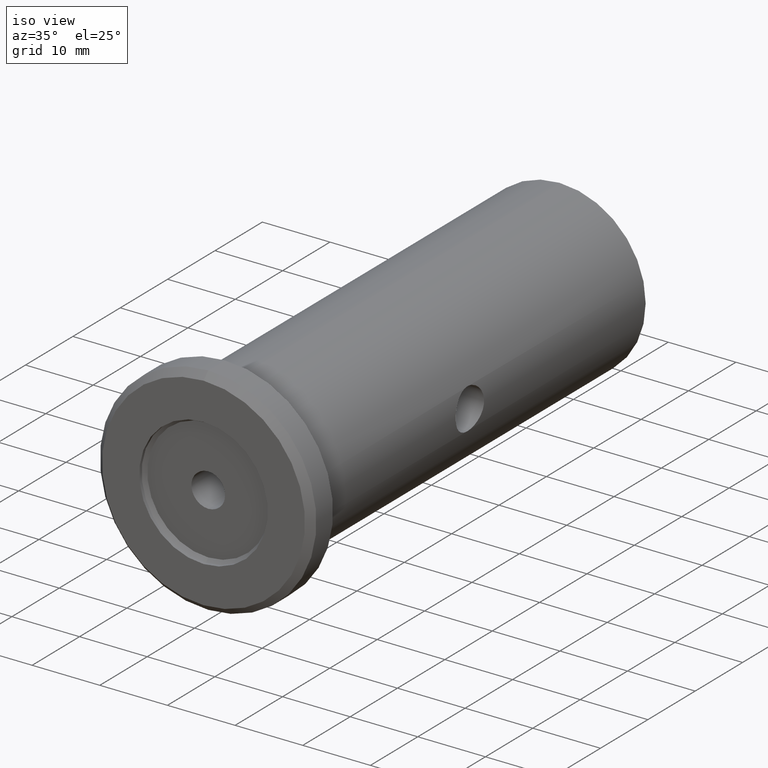
[diagram: clean part render]
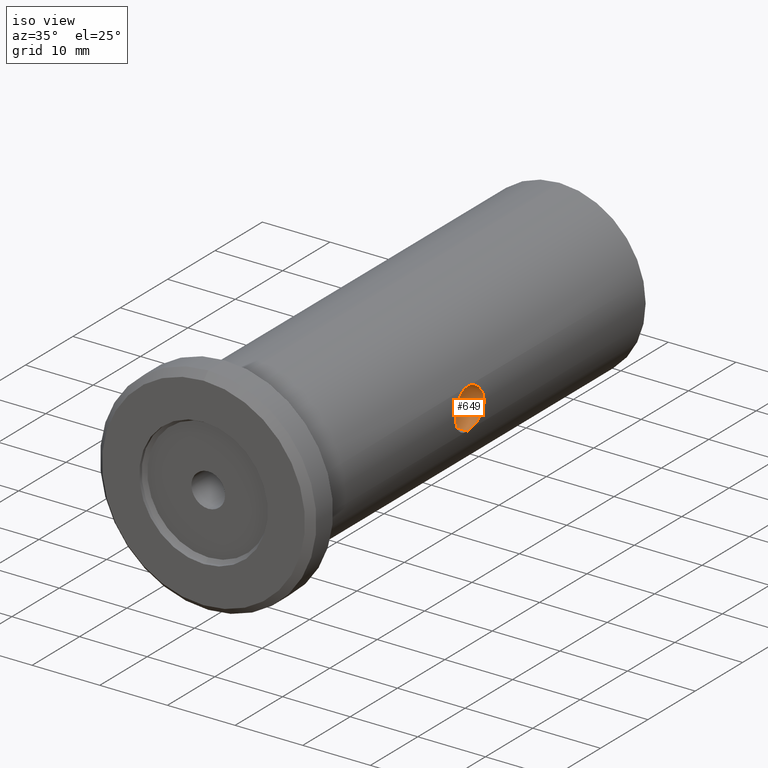
[diagram: same view with one face highlighted and labeled with its STEP entity id]
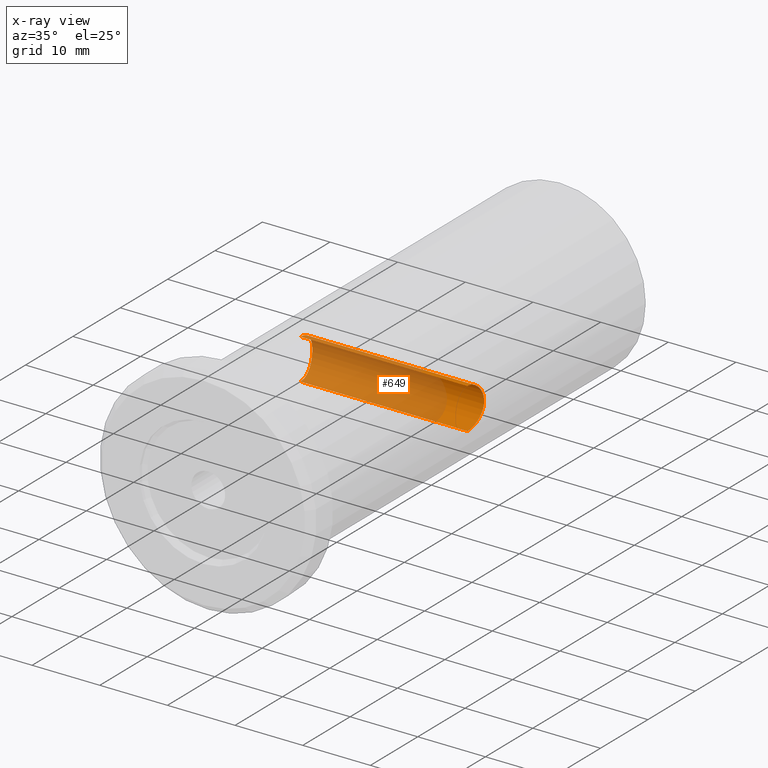
[diagram: x-ray of the same camera — body ghosted, the highlighted face saturated]
A machine part, iso view. The second image highlights one B-rep face of the part: STEP entity #649.
The next image is the same camera in x-ray: the body ghosted, the highlighted face saturated — about 78% of this face is hidden behind the body in this view.
In plain terms, the highlighted cylindrical surface (edge-blend (fillet) strip) has radius 3 mm, axis along (1, -0, -0).
Its self-contained STEP definition (entity closure, byte-faithful):
#44 = B_SPLINE_CURVE_WITH_KNOTS ( 'NONE', 3,
 ( #181, #187, #102, #94, #92, #62, #52, #126, #404, #422, #418, #431, #165, #112, #1009, #262, #152, #640, #624, #122, #311, #453, #562, #758, #133, #380, #467, #617, #725, #738 ),
 .UNSPECIFIED., .F., .F.,
 ( 4, 2, 2, 2, 2, 2, 2, 2, 2, 2, 2, 2, 2, 2, 4 ),
 ( 0.009412667079034401800, 0.01058893397553798700, 0.01117706742378978000, 0.01176520087204157300, 0.01235333432029336500, 0.01294146776854516000, 0.01411773466504874500, 0.01470586811330053600, 0.01529400156155233000, 0.01588213500980412100, 0.01647026845805591600, 0.01705840190630770700, 0.01764653535455949800, 0.01823466880281129200, 0.01882280225106308300 ),
 .UNSPECIFIED. ) ;
#52 = CARTESIAN_POINT ( 'NONE',  ( -12.49796677050642300, 1.981859612206928300, 2.260636793640891100 ) ) ;
#53 = LINE ( 'NONE', #914, #135 ) ;
#62 = CARTESIAN_POINT ( 'NONE',  ( -12.47468320798980900, 1.831332780074599800, 2.384247804627435600 ) ) ;
#68 = CARTESIAN_POINT ( 'NONE',  ( -15.00000000000000000, 0.0000000000000000000, -3.000000000000000400 ) ) ;
#92 = CARTESIAN_POINT ( 'NONE',  ( -12.43103365166612800, 1.505541849477609600, 2.602260764166044900 ) ) ;
#94 = CARTESIAN_POINT ( 'NONE',  ( -12.41076176351435700, 1.330169052897215400, 2.696087432792287700 ) ) ;
#99 = CARTESIAN_POINT ( 'NONE',  ( 12.54501379897762100, 2.259605770921662600, -1.982973375450764100 ) ) ;
#102 = CARTESIAN_POINT ( 'NONE',  ( -12.36050455192009600, 0.7883155537857091700, 2.920874390630895600 ) ) ;
#112 = CARTESIAN_POINT ( 'NONE',  ( -12.70001675460108400, 3.000070927815543100, -0.1968384151971257200 ) ) ;
#119 = CARTESIAN_POINT ( 'NONE',  ( 12.67747894214160100, 2.903424418151325300, 0.7802111343050287500 ) ) ;
#122 = CARTESIAN_POINT ( 'NONE',  ( -12.56857411084801700, 2.385479401305897500, -1.829792836393111300 ) ) ;
#126 = CARTESIAN_POINT ( 'NONE',  ( -12.54482249560000200, 2.258576005346344800, 1.984207817577006100 ) ) ;
#133 = CARTESIAN_POINT ( 'NONE',  ( -12.41113163061574400, 1.333592059538673400, -2.694390179056004500 ) ) ;
#135 = VECTOR ( 'NONE', #454, 1000.000000000000000 ) ;
#152 = CARTESIAN_POINT ( 'NONE',  ( -12.66431776804078300, 2.846104808753820300, -0.9685504591483926600 ) ) ;
#157 = CARTESIAN_POINT ( 'NONE',  ( 12.47454810378221300, 1.830403358838166500, -2.384947633839920500 ) ) ;
#165 = CARTESIAN_POINT ( 'NONE',  ( -12.69996635353023400, 2.999857563269277400, 0.3969109907540829800 ) ) ;
#173 = DIRECTION ( 'NONE',  ( 1.000000000000000000, -0.0000000000000000000, -0.0000000000000000000 ) ) ;
#175 = VERTEX_POINT ( 'NONE', #379 ) ;
#181 = CARTESIAN_POINT ( 'NONE',  ( -12.34058345460214700, 3.673897267749889900E-016, 3.000000000000000400 ) ) ;
#187 = CARTESIAN_POINT ( 'NONE',  ( -12.34058345460214300, 0.3922863687159829900, 3.000000000000000000 ) ) ;
#189 = CARTESIAN_POINT ( 'NONE',  ( 12.69998125227231300, 2.999920634613350200, -0.1976705434757185200 ) ) ;
#197 = CARTESIAN_POINT ( 'NONE',  ( 12.34058345460214500, 0.0000000000000000000, -3.000000000000000400 ) ) ;
#252 = CARTESIAN_POINT ( 'NONE',  ( 12.67748171377693500, 2.903438611103019300, -0.7804499343708762900 ) ) ;
#254 = CARTESIAN_POINT ( 'NONE',  ( 12.34058345460214700, 0.1989779262808130100, -3.000000000000000900 ) ) ;
#262 = CARTESIAN_POINT ( 'NONE',  ( -12.67766831579774900, 2.904248302489957000, -0.7770932324453367900 ) ) ;
#271 = CARTESIAN_POINT ( 'NONE',  ( 12.36364845247827300, 0.7788841922981167800, -2.903747440990431800 ) ) ;
#301 = CARTESIAN_POINT ( 'NONE',  ( 12.61164142107485700, 2.602893796124840600, -1.504603309470562900 ) ) ;
#309 = CARTESIAN_POINT ( 'NONE',  ( 12.69540616597752500, 2.980729924772695000, -0.3928192765991709300 ) ) ;
#311 = CARTESIAN_POINT ( 'NONE',  ( -12.54510018992768900, 2.260074456527657800, -1.982419639357174000 ) ) ;
#333 = EDGE_CURVE ( 'NONE', #953, #802, #53, .T. ) ;
#376 = CYLINDRICAL_SURFACE ( 'NONE', #416, 3.000000000000000400 ) ;
#379 = CARTESIAN_POINT ( 'NONE',  ( 12.34058345460214500, 0.0000000000000000000, -3.000000000000000400 ) ) ;
#380 = CARTESIAN_POINT ( 'NONE',  ( -12.37755469971725100, 0.9726971642225672500, -2.844655769152295600 ) ) ;
#383 = CARTESIAN_POINT ( 'NONE',  ( 12.56820308289541400, 2.383544736948750100, -1.832375976632214500 ) ) ;
#390 = VERTEX_POINT ( 'NONE', #409 ) ;
#400 = DIRECTION ( 'NONE',  ( 0.0000000000000000000, 0.0000000000000000000, -1.000000000000000000 ) ) ;
#404 = CARTESIAN_POINT ( 'NONE',  ( -12.56844300761515900, 2.384757141274783000, 1.830568633040425400 ) ) ;
#409 = CARTESIAN_POINT ( 'NONE',  ( -12.34058345460214500, 0.0000000000000000000, -3.000000000000000400 ) ) ;
#416 = AXIS2_PLACEMENT_3D ( 'NONE', #655, #799, #400 ) ;
#418 = CARTESIAN_POINT ( 'NONE',  ( -12.63103276044702200, 2.694153476701963300, 1.334365138730794900 ) ) ;
#422 = CARTESIAN_POINT ( 'NONE',  ( -12.61140969090288500, 2.601722771355546600, 1.506348818880467200 ) ) ;
#427 = EDGE_LOOP ( 'NONE', ( #798, #466, #969, #543 ) ) ;
#431 = CARTESIAN_POINT ( 'NONE',  ( -12.68085570871133200, 2.921643193019113600, 0.7873843855616282600 ) ) ;
#435 = EDGE_CURVE ( 'NONE', #390, #175, #449, .T. ) ;
#443 = CARTESIAN_POINT ( 'NONE',  ( 12.37731333908835700, 0.9698132417050455700, -2.845713835891867700 ) ) ;
#449 = LINE ( 'NONE', #68, #854 ) ;
#453 = CARTESIAN_POINT ( 'NONE',  ( -12.49844356737609800, 1.984814696794136900, -2.257971389311169500 ) ) ;
#454 = DIRECTION ( 'NONE',  ( 1.000000000000000000, -0.0000000000000000000, -0.0000000000000000000 ) ) ;
#466 = ORIENTED_EDGE ( 'NONE', *, *, #761, .T. ) ;
#467 = CARTESIAN_POINT ( 'NONE',  ( -12.36381461348561200, 0.7818070014868243600, -2.903044826625438300 ) ) ;
#469 = EDGE_CURVE ( 'NONE', #175, #802, #729, .T. ) ;
#474 = CARTESIAN_POINT ( 'NONE',  ( 12.49830911177946500, 1.983980261250872300, -2.258721755926568400 ) ) ;
#480 = CARTESIAN_POINT ( 'NONE',  ( 12.34058345460214700, 3.673983527228629800E-016, 3.000000000000000400 ) ) ;
#495 = CARTESIAN_POINT ( 'NONE',  ( 12.34058345460214700, 3.673983527228629800E-016, 3.000000000000000400 ) ) ;
#514 = CARTESIAN_POINT ( 'NONE',  ( 12.34058345460213800, 0.1961959589774335300, 2.999999999999999100 ) ) ;
#524 = CARTESIAN_POINT ( 'NONE',  ( 12.34540943226093500, 0.3953800005819881300, 2.980342611530813800 ) ) ;
#543 = ORIENTED_EDGE ( 'NONE', *, *, #469, .T. ) ;
#562 = CARTESIAN_POINT ( 'NONE',  ( -12.47492482388633100, 1.833045648879968700, -2.383012267823712900 ) ) ;
#564 = CARTESIAN_POINT ( 'NONE',  ( 12.36380123083862200, 0.7815191426890530900, 2.903100972508035200 ) ) ;
#569 = CARTESIAN_POINT ( 'NONE',  ( 12.47463182756675300, 1.830920196572526400, 2.384495194046026200 ) ) ;
#583 = CARTESIAN_POINT ( 'NONE',  ( 12.49792670909633700, 1.981660059747385000, 2.260912276721163100 ) ) ;
#599 = CARTESIAN_POINT ( 'NONE',  ( 12.54505977580016700, 2.259940119749593200, 1.982768662898593400 ) ) ;
#600 = CARTESIAN_POINT ( 'NONE',  ( 12.34539429430230400, 0.3944842333164501600, -2.980401311188662900 ) ) ;
#617 = CARTESIAN_POINT ( 'NONE',  ( -12.34539404842546900, 0.3950501257214644200, -2.980407161972672200 ) ) ;
#624 = CARTESIAN_POINT ( 'NONE',  ( -12.61184948913362500, 2.603882549335855100, -1.502813849894423700 ) ) ;
#636 = CARTESIAN_POINT ( 'NONE',  ( 12.56845845584328800, 2.384838063548884600, 1.830462364816147300 ) ) ;
#640 = CARTESIAN_POINT ( 'NONE',  ( -12.63141432737123200, 2.695922098692304900, -1.330566274978683700 ) ) ;
#645 = CARTESIAN_POINT ( 'NONE',  ( 12.61142186795497000, 2.601781344507210700, 1.506246624472293000 ) ) ;
#649 = ADVANCED_FACE ( 'NONE', ( #1018 ), #376, .F. ) ;
#655 = CARTESIAN_POINT ( 'NONE',  ( -15.00000000000000000, 0.0000000000000000000, 0.0000000000000000000 ) ) ;
#656 = CARTESIAN_POINT ( 'NONE',  ( 12.63130768527638500, 2.695434302115961700, 1.331724090208787500 ) ) ;
#669 = CARTESIAN_POINT ( 'NONE',  ( 12.66440676946795900, 2.846512086650439400, 0.9675867248049365700 ) ) ;
#670 = CARTESIAN_POINT ( 'NONE',  ( 12.41102950409115900, 1.332781145287208500, -2.694869083710705700 ) ) ;
#709 = CARTESIAN_POINT ( 'NONE',  ( 12.70001863278653100, 3.000078878802316900, 0.1952541387555735400 ) ) ;
#725 = CARTESIAN_POINT ( 'NONE',  ( -12.34058345460214500, 0.1989244033418513200, -2.999999999999999100 ) ) ;
#729 = B_SPLINE_CURVE_WITH_KNOTS ( 'NONE', 3,
 ( #197, #254, #600, #271, #443, #670, #868, #157, #474, #99, #383, #301, #960, #1022, #252, #309, #189, #709, #899, #119, #669, #656, #645, #636, #599, #583, #569, #965, #978, #1000, #564, #524, #514, #495 ),
 .UNSPECIFIED., .F., .F.,
 ( 4, 2, 2, 2, 2, 2, 2, 2, 2, 2, 2, 2, 2, 2, 2, 2, 4 ),
 ( 0.0000000000000000000, 0.0005882916924396493600, 0.001176583384879298700, 0.001764875077318948500, 0.002353166769758598300, 0.002941458462198248500, 0.003529750154637897900, 0.004118041847077548100, 0.004706333539517198300, 0.005294625231956847700, 0.005882916924396498800, 0.006471208616836149000, 0.007059500309275799200, 0.007647792001715450300, 0.008236083694155099700, 0.008824375386594751600, 0.009412667079034400100 ),
 .UNSPECIFIED. ) ;
#738 = CARTESIAN_POINT ( 'NONE',  ( -12.34058345460214500, 0.0000000000000000000, -3.000000000000000400 ) ) ;
#758 = CARTESIAN_POINT ( 'NONE',  ( -12.43104311460961700, 1.505702462821098900, -2.602242093451448700 ) ) ;
#761 = EDGE_CURVE ( 'NONE', #953, #390, #44, .T. ) ;
#798 = ORIENTED_EDGE ( 'NONE', *, *, #333, .F. ) ;
#799 = DIRECTION ( 'NONE',  ( 1.000000000000000000, -0.0000000000000000000, -0.0000000000000000000 ) ) ;
#802 = VERTEX_POINT ( 'NONE', #480 ) ;
#854 = VECTOR ( 'NONE', #173, 1000.000000000000000 ) ;
#868 = CARTESIAN_POINT ( 'NONE',  ( 12.43094741850346300, 1.504818854237115500, -2.602666303646544500 ) ) ;
#899 = CARTESIAN_POINT ( 'NONE',  ( 12.69532512922621100, 2.980382720429737700, 0.3948690995440590200 ) ) ;
#914 = CARTESIAN_POINT ( 'NONE',  ( -15.00000000000000000, 3.673940397442060400E-016, 3.000000000000000400 ) ) ;
#928 = CARTESIAN_POINT ( 'NONE',  ( -12.34058345460214700, 3.673897267749889900E-016, 3.000000000000000400 ) ) ;
#953 = VERTEX_POINT ( 'NONE', #928 ) ;
#960 = CARTESIAN_POINT ( 'NONE',  ( 12.63135113081014500, 2.695621424171695600, -1.331080578736588000 ) ) ;
#965 = CARTESIAN_POINT ( 'NONE',  ( 12.43116662401985900, 1.506563363095320800, 2.601605836714064900 ) ) ;
#969 = ORIENTED_EDGE ( 'NONE', *, *, #435, .T. ) ;
#978 = CARTESIAN_POINT ( 'NONE',  ( 12.41082553459716200, 1.330833789716795400, 2.695800476185902000 ) ) ;
#1000 = CARTESIAN_POINT ( 'NONE',  ( 12.37722027103388500, 0.9685606658001303400, 2.846111210040975800 ) ) ;
#1009 = CARTESIAN_POINT ( 'NONE',  ( -12.69541110465184500, 2.980746113517730200, -0.3920264036733793800 ) ) ;
#1018 = FACE_OUTER_BOUND ( 'NONE', #427, .T. ) ;
#1022 = CARTESIAN_POINT ( 'NONE',  ( 12.66417354560177200, 2.845458674054940100, -0.9703171150653150400 ) ) ;